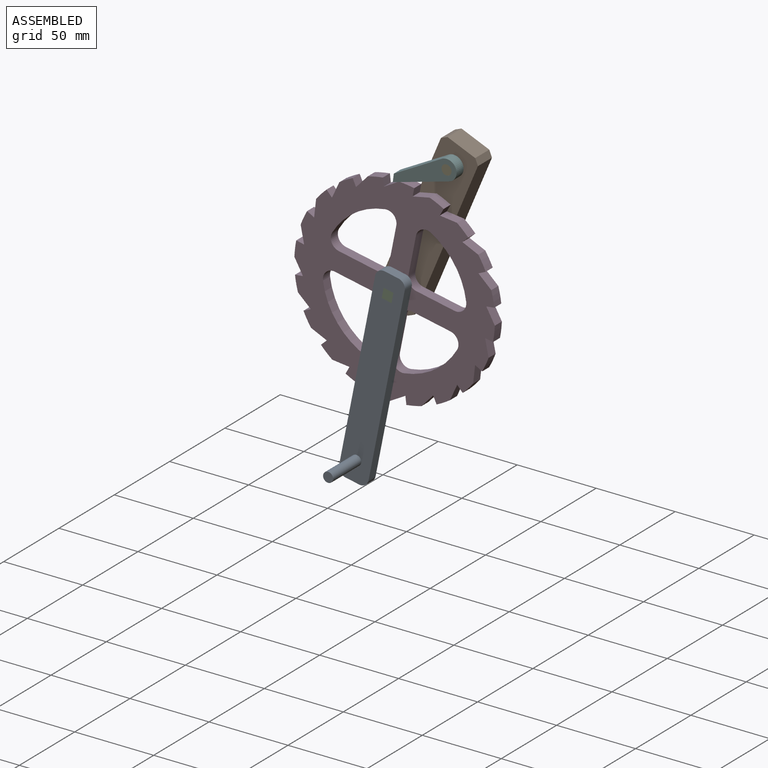
[diagram: assembled view]
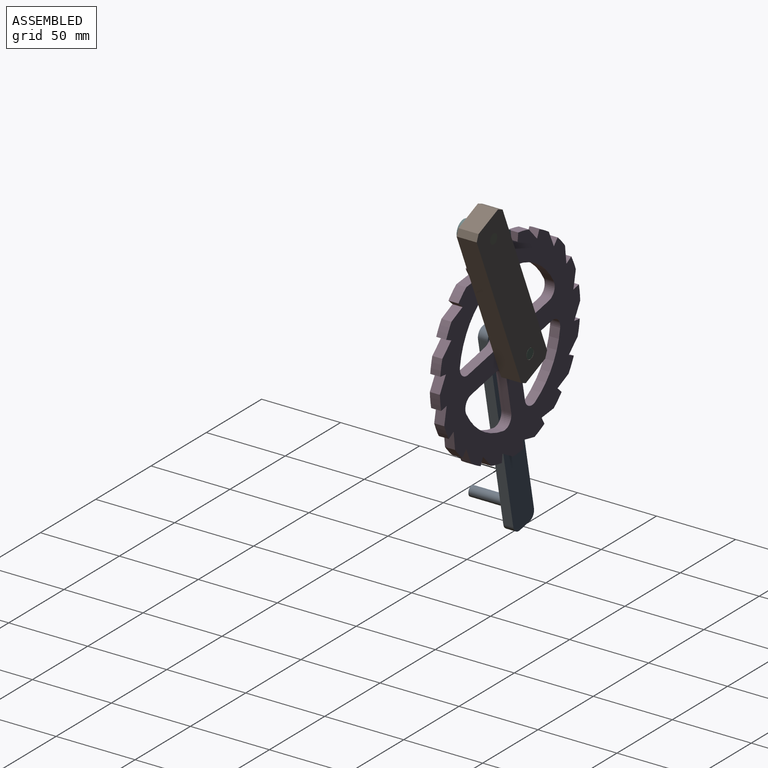
[diagram: assembled view, second angle]
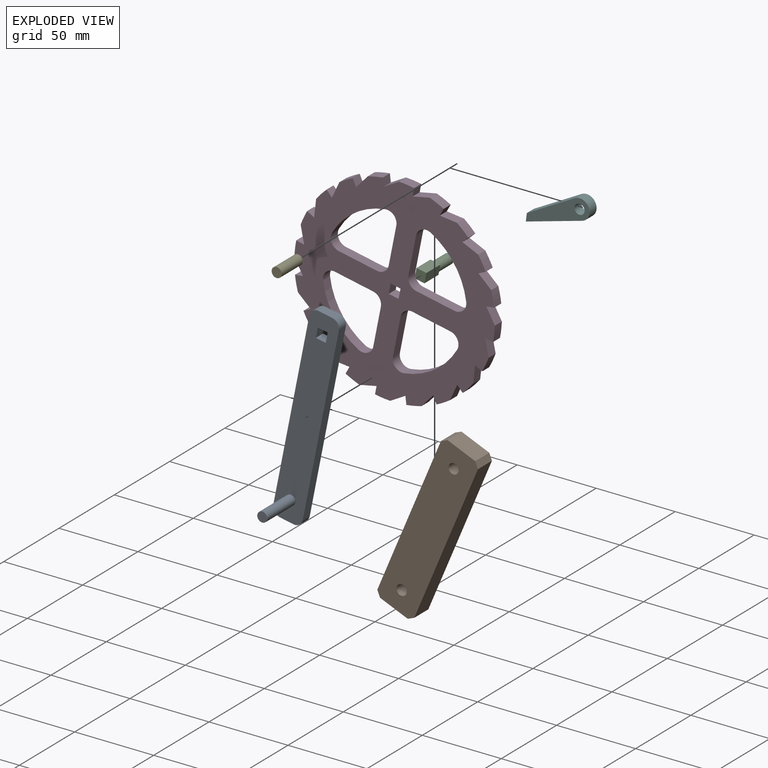
[diagram: exploded view]
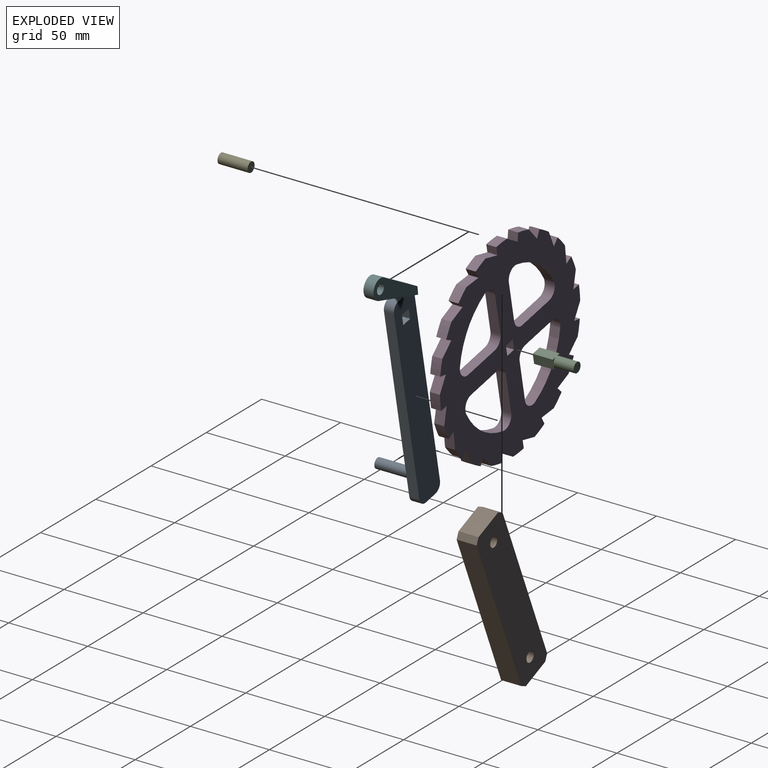
[diagram: exploded view, second angle]
ASSEMBLY  parts=6 mates=5
PART A: 17 faces, bbox 127x31.8x19.1 mm
  f0: plane 127x19.05mm, normal (0,-1,0), area 2325.2mm2, adj f2,f3,f4,f5,f6,f7,f8,f9
  f1: plane 127x19.05mm, normal (0,1,0), area 2356.9mm2, adj f2,f3,f4,f5,f6,f7,f8,f9
  f2: plane 8.89x6.35mm, normal (1,0,0), area 56.5mm2, adj f0,f1,f12,f15
  f3: plane 116.84x6.35mm, normal (0,0,1), area 741.9mm2, adj f0,f1,f12,f13
  f4: plane 8.89x6.35mm, normal (-1,0,0), area 56.5mm2, adj f0,f1,f13,f14
  f5: plane 116.84x6.35mm, normal (0,0,-1), area 741.9mm2, adj f0,f1,f14,f15
  f6: plane 6.35x6.35mm, normal (-1,0,0), area 40.3mm2, adj f0,f1,f7,f9
  f7: plane 6.35x6.35mm, normal (0,0,-1), area 39.3mm2, adj f0,f1,f6,f8,f16
  f8: plane 6.35x6.35mm, normal (1,0,0), area 40.3mm2, adj f0,f1,f7,f9
  f9: plane 6.35x6.35mm, normal (0,0,1), area 40.3mm2, adj f0,f1,f6,f8
  f10: cylinder r=3.17mm len=25.4mm, axis (0,1,0), area 506.7mm2, adj f0,f11
  f11: plane 6.35x6.35mm, normal (0,-1,0), area 31.7mm2, adj f10
  f12: cylinder r=5.08mm len=6.35mm, axis (0,-1,0), area 50.7mm2, adj f0,f1,f2,f3
  f13: cylinder r=5.08mm len=6.35mm, axis (0,1,0), area 50.7mm2, adj f0,f1,f3,f4
  f14: cylinder r=5.08mm len=6.35mm, axis (0,-1,0), area 50.7mm2, adj f0,f1,f4,f5
  f15: cylinder r=5.08mm len=6.35mm, axis (0,1,0), area 50.7mm2, adj f0,f1,f2,f5
  f16: revolved ~1.52x0.94mm, area 1.8mm2, adj f7
PART B: 12 faces, bbox 63.7x12.7x109 mm
  f0: plane 95.75x40.26mm, normal (-0.92,0,0.39), area 1319.1mm2, adj f6,f7,f8,f11
  f1: plane 17.56x12.7mm, normal (-0.39,0,-0.92), area 241.9mm2, adj f6,f7,f10,f11
  f2: plane 95.75x40.26mm, normal (0.92,0,-0.39), area 1319.1mm2, adj f6,f7,f9,f10
  f3: cylinder r=3.3mm len=12.7mm, axis (0,1,0), area 263.5mm2, adj f6,f7
  f4: plane 17.56x12.7mm, normal (0.39,0,0.92), area 241.9mm2, adj f6,f7,f8,f9
  f5: cylinder r=3.17mm len=12.7mm, axis (0,1,0), area 253.4mm2, adj f6,f7
  f6: plane 108.99x63.67mm, normal (0,-1,0), area 2713.5mm2, adj f0,f1,f2,f3,f4,f5,f8,f9
  f7: plane 108.99x63.67mm, normal (0,1,0), area 2713.5mm2, adj f0,f1,f2,f3,f4,f5,f8,f9
  f8: plane 12.7x4.16mm, normal (-0.38,0,0.93), area 57mm2, adj f0,f4,f6,f7
  f9: plane 12.7x4.16mm, normal (0.93,0,0.38), area 57mm2, adj f2,f4,f6,f7
  f10: plane 12.7x4.16mm, normal (0.38,0,-0.93), area 57mm2, adj f1,f2,f6,f7
  f11: plane 12.7x4.16mm, normal (-0.93,0,-0.38), area 57mm2, adj f0,f1,f6,f7
PART C: 11 faces, bbox 6.4x25.4x6.4 mm
  f0: cylinder r=3.17mm len=12.7mm, axis (0,1,0), area 253.4mm2, adj f1,f2,f3,f4,f5
  f1: plane 6.35x6.35mm, normal (0,1,0), area 31.7mm2, adj f0
  f2: plane 3.18x3.18mm, normal (0,1,0), area 2.2mm2, adj f0,f6,f9
  f3: plane 3.18x3.18mm, normal (0,1,0), area 2.2mm2, adj f0,f6,f7
  f4: plane 3.18x3.18mm, normal (0,1,0), area 2.2mm2, adj f0,f7,f8
  f5: plane 3.18x3.18mm, normal (0,1,0), area 2.2mm2, adj f0,f8,f9
  f6: plane 12.7x6.35mm, normal (1,0,0), area 80.6mm2, adj f2,f3,f7,f9,f10
  f7: plane 12.7x6.35mm, normal (0,0,1), area 80.6mm2, adj f3,f4,f6,f8,f10
  f8: plane 12.7x6.35mm, normal (-1,0,0), area 80.6mm2, adj f4,f5,f7,f9,f10
  f9: plane 12.7x6.35mm, normal (0,0,-1), area 80.6mm2, adj f2,f5,f6,f8,f10
  f10: plane 6.35x6.35mm, normal (0,-1,0), area 40.3mm2, adj f6,f7,f8,f9
PART D: 90 faces, bbox 127x6.4x127 mm
  f0: plane 127x127mm, normal (0,-1,0), area 7829.8mm2, adj f2,f3,f4,f5,f6,f7,f8,f9
  f1: plane 127x127mm, normal (0,1,0), area 7829.8mm2, adj f2,f3,f4,f5,f6,f7,f8,f9
  f2: cylinder r=63.5mm len=9mm, axis (0,1,0), area 61.9mm2, adj f0,f1,f33,f64
  f3: cylinder r=63.5mm len=9.71mm, axis (0,1,0), area 61.9mm2, adj f0,f1,f62,f65
  f4: cylinder r=63.5mm len=9.46mm, axis (0,1,0), area 61.9mm2, adj f0,f1,f60,f63
  f5: cylinder r=63.5mm len=8.29mm, axis (0,1,0), area 61.9mm2, adj f0,f1,f58,f61
  f6: cylinder r=63.5mm len=7.41mm, axis (0,1,0), area 61.9mm2, adj f0,f1,f56,f59
  f7: cylinder r=63.5mm len=9mm, axis (0,1,0), area 61.9mm2, adj f0,f1,f54,f57
  f8: cylinder r=63.5mm len=9.71mm, axis (0,1,0), area 61.9mm2, adj f0,f1,f52,f55
  f9: cylinder r=63.5mm len=9.46mm, axis (0,1,0), area 61.9mm2, adj f0,f1,f50,f53
  f10: cylinder r=63.5mm len=8.29mm, axis (0,1,0), area 61.9mm2, adj f0,f1,f48,f51
  f11: cylinder r=63.5mm len=7.41mm, axis (0,1,0), area 61.9mm2, adj f0,f1,f46,f49
  f12: cylinder r=63.5mm len=9mm, axis (0,1,0), area 61.9mm2, adj f0,f1,f44,f47
  f13: cylinder r=63.5mm len=9.71mm, axis (0,1,0), area 61.9mm2, adj f0,f1,f42,f45
  f14: cylinder r=63.5mm len=9.46mm, axis (0,1,0), area 61.9mm2, adj f0,f1,f40,f43
  f15: cylinder r=63.5mm len=8.29mm, axis (0,1,0), area 61.9mm2, adj f0,f1,f38,f41
  f16: cylinder r=63.5mm len=7.41mm, axis (0,1,0), area 61.9mm2, adj f0,f1,f36,f39
  f17: cylinder r=63.5mm len=9mm, axis (0,1,0), area 61.9mm2, adj f0,f1,f34,f37
  f18: cylinder r=63.5mm len=7.41mm, axis (0,1,0), area 61.9mm2, adj f0,f1,f31,f32
  f19: cylinder r=63.5mm len=8.29mm, axis (0,1,0), area 61.9mm2, adj f0,f1,f29,f30
  f20: cylinder r=63.5mm len=9.46mm, axis (0,1,0), area 61.9mm2, adj f0,f1,f26,f28
  f21: plane 6.35x6.35mm, normal (0,0,-1), area 40.3mm2, adj f0,f1,f22,f25
  f22: plane 6.35x6.35mm, normal (-1,0,0), area 40.3mm2, adj f0,f1,f21,f23
  f23: plane 6.35x6.35mm, normal (0,0,1), area 40.3mm2, adj f0,f1,f22,f25
  f24: cylinder r=63.5mm len=9.71mm, axis (0,1,0), area 61.9mm2, adj f0,f1,f27,f35
  f25: plane 6.35x6.35mm, normal (1,0,0), area 40.3mm2, adj f0,f1,f21,f23
  f26: plane 10.16x6.35mm, normal (-0.39,0,0.92), area 70mm2, adj f0,f1,f20,f27
  f27: plane 6.35x5.08mm, normal (1,0,0), area 32.3mm2, adj f0,f1,f24,f26
  f28: plane 6.35x4.83mm, normal (0.95,0,-0.31), area 32.3mm2, adj f0,f1,f20,f29
  f29: plane 10.98x6.35mm, normal (-0.08,0,1), area 70mm2, adj f0,f1,f19,f28
  f30: plane 6.35x4.11mm, normal (0.81,0,-0.59), area 32.3mm2, adj f0,f1,f19,f31
  f31: plane 10.72x6.35mm, normal (0.23,0,0.97), area 70mm2, adj f0,f1,f18,f30
  f32: plane 6.35x4.11mm, normal (0.59,0,-0.81), area 32.3mm2, adj f0,f1,f18,f33
  f33: plane 9.42x6.35mm, normal (0.52,0,0.85), area 70mm2, adj f0,f1,f2,f32
  f34: plane 6.35x4.83mm, normal (0.95,0,0.31), area 32.3mm2, adj f0,f1,f17,f35
  f35: plane 8.35x7.19mm, normal (-0.65,0,0.76), area 70mm2, adj f0,f1,f24,f34
  f36: plane 6.35x4.11mm, normal (0.81,0,0.59), area 32.3mm2, adj f0,f1,f16,f37
  f37: plane 9.42x6.35mm, normal (-0.85,0,0.52), area 70mm2, adj f0,f1,f17,f36
  f38: plane 6.35x4.11mm, normal (0.59,0,0.81), area 32.3mm2, adj f0,f1,f15,f39
  f39: plane 10.72x6.35mm, normal (-0.97,0,0.23), area 70mm2, adj f0,f1,f16,f38
  f40: plane 6.35x4.83mm, normal (0.31,0,0.95), area 32.3mm2, adj f0,f1,f14,f41
  f41: plane 10.98x6.35mm, normal (-1,0,-0.08), area 70mm2, adj f0,f1,f15,f40
  f42: plane 6.35x5.08mm, normal (0,0,1), area 32.3mm2, adj f0,f1,f13,f43
  f43: plane 10.16x6.35mm, normal (-0.92,0,-0.39), area 70mm2, adj f0,f1,f14,f42
  f44: plane 6.35x4.83mm, normal (-0.31,0,0.95), area 32.3mm2, adj f0,f1,f12,f45
  f45: plane 8.35x7.19mm, normal (-0.76,0,-0.65), area 70mm2, adj f0,f1,f13,f44
  f46: plane 6.35x4.11mm, normal (-0.59,0,0.81), area 32.3mm2, adj f0,f1,f11,f47
  f47: plane 9.42x6.35mm, normal (-0.52,0,-0.85), area 70mm2, adj f0,f1,f12,f46
  f48: plane 6.35x4.11mm, normal (-0.81,0,0.59), area 32.3mm2, adj f0,f1,f10,f49
  f49: plane 10.72x6.35mm, normal (-0.23,0,-0.97), area 70mm2, adj f0,f1,f11,f48
  f50: plane 6.35x4.83mm, normal (-0.95,0,0.31), area 32.3mm2, adj f0,f1,f9,f51
  f51: plane 10.98x6.35mm, normal (0.08,0,-1), area 70mm2, adj f0,f1,f10,f50
  f52: plane 6.35x5.08mm, normal (-1,0,0), area 32.3mm2, adj f0,f1,f8,f53
  f53: plane 10.16x6.35mm, normal (0.39,0,-0.92), area 70mm2, adj f0,f1,f9,f52
  f54: plane 6.35x4.83mm, normal (-0.95,0,-0.31), area 32.3mm2, adj f0,f1,f7,f55
  f55: plane 8.35x7.19mm, normal (0.65,0,-0.76), area 70mm2, adj f0,f1,f8,f54
  f56: plane 6.35x4.11mm, normal (-0.81,0,-0.59), area 32.3mm2, adj f0,f1,f6,f57
  f57: plane 9.42x6.35mm, normal (0.85,0,-0.52), area 70mm2, adj f0,f1,f7,f56
  f58: plane 6.35x4.11mm, normal (-0.59,0,-0.81), area 32.3mm2, adj f0,f1,f5,f59
  f59: plane 10.72x6.35mm, normal (0.97,0,-0.23), area 70mm2, adj f0,f1,f6,f58
  f60: plane 6.35x4.83mm, normal (-0.31,0,-0.95), area 32.3mm2, adj f0,f1,f4,f61
  f61: plane 10.98x6.35mm, normal (1,0,0.08), area 70mm2, adj f0,f1,f5,f60
  f62: plane 6.35x5.08mm, normal (0,0,-1), area 32.3mm2, adj f0,f1,f3,f63
  f63: plane 10.16x6.35mm, normal (0.92,0,0.39), area 70mm2, adj f0,f1,f4,f62
  f64: plane 6.35x4.83mm, normal (0.31,0,-0.95), area 32.3mm2, adj f0,f1,f2,f65
  f65: plane 8.35x7.19mm, normal (0.76,0,0.65), area 70mm2, adj f0,f1,f3,f64
  f66: plane 24.57x6.35mm, normal (0,0,-1), area 156mm2, adj f0,f1,f87,f89
  f67: cylinder r=45.72mm len=28.53mm, axis (0,-1,0), area 265.3mm2, adj f0,f1,f88,f89
  f68: plane 24.57x6.35mm, normal (-1,0,0), area 156mm2, adj f0,f1,f87,f88
  f69: plane 24.57x6.35mm, normal (0,0,1), area 156mm2, adj f0,f1,f84,f86
  f70: plane 24.57x6.35mm, normal (-1,0,0), area 156mm2, adj f0,f1,f84,f85
  f71: cylinder r=45.72mm len=28.53mm, axis (0,-1,0), area 265.3mm2, adj f0,f1,f85,f86
  f72: plane 24.57x6.35mm, normal (1,0,0), area 156mm2, adj f0,f1,f81,f83
  f73: plane 24.57x6.35mm, normal (0,0,1), area 156mm2, adj f0,f1,f82,f83
  f74: cylinder r=45.72mm len=28.53mm, axis (0,-1,0), area 265.3mm2, adj f0,f1,f81,f82
  f75: plane 24.57x6.35mm, normal (0,0,-1), area 156mm2, adj f0,f1,f78,f80
  f76: plane 24.57x6.35mm, normal (1,0,0), area 156mm2, adj f0,f1,f79,f80
  f77: cylinder r=45.72mm len=28.53mm, axis (0,-1,0), area 265.3mm2, adj f0,f1,f78,f79
  f78: cylinder r=6.35mm len=8.4mm, axis (0,-1,0), area 76.6mm2, adj f0,f1,f75,f77
  f79: cylinder r=6.35mm len=8.4mm, axis (0,-1,0), area 76.6mm2, adj f0,f1,f76,f77
  f80: cylinder r=6.35mm len=6.35mm, axis (0,-1,0), area 63.3mm2, adj f0,f1,f75,f76
  f81: cylinder r=6.35mm len=8.4mm, axis (0,-1,0), area 76.6mm2, adj f0,f1,f72,f74
  f82: cylinder r=6.35mm len=8.4mm, axis (0,-1,0), area 76.6mm2, adj f0,f1,f73,f74
  f83: cylinder r=6.35mm len=6.35mm, axis (0,-1,0), area 63.3mm2, adj f0,f1,f72,f73
  f84: cylinder r=6.35mm len=6.35mm, axis (0,-1,0), area 63.3mm2, adj f0,f1,f69,f70
  f85: cylinder r=6.35mm len=8.4mm, axis (0,-1,0), area 76.6mm2, adj f0,f1,f70,f71
  f86: cylinder r=6.35mm len=8.4mm, axis (0,-1,0), area 76.6mm2, adj f0,f1,f69,f71
  f87: cylinder r=6.35mm len=6.35mm, axis (0,-1,0), area 63.3mm2, adj f0,f1,f66,f68
  f88: cylinder r=6.35mm len=8.4mm, axis (0,-1,0), area 76.6mm2, adj f0,f1,f67,f68
  f89: cylinder r=6.35mm len=8.4mm, axis (0,-1,0), area 76.6mm2, adj f0,f1,f66,f67
PART E: 3 faces, bbox 6.4x19.1x6.4 mm
  f0: cylinder r=3.17mm len=19.05mm, axis (0,1,0), area 380mm2, adj f1,f2
  f1: plane 6.35x6.35mm, normal (0,-1,0), area 31.7mm2, adj f0
  f2: plane 6.35x6.35mm, normal (0,1,0), area 31.7mm2, adj f0
PART F: 7 faces, bbox 38.1x6.4x26.6 mm
  f0: plane 6.35x5.08mm, normal (-1,0,0), area 32.3mm2, adj f1,f3,f5,f6
  f1: plane 34.21x14.35mm, normal (0.39,0,-0.92), area 235.5mm2, adj f0,f2,f5,f6
  f2: cylinder r=6.35mm len=12.21mm, axis (0,1,0), area 135.9mm2, adj f1,f3,f5,f6
  f3: plane 28.03x20.27mm, normal (-0.59,0,0.81), area 219.6mm2, adj f0,f2,f5,f6
  f4: cylinder r=3.17mm len=6.35mm, axis (0,1,0), area 126.7mm2, adj f5,f6
  f5: plane 38.1x26.55mm, normal (0,-1,0), area 344.5mm2, adj f0,f1,f2,f3,f4
  f6: plane 38.1x26.55mm, normal (0,1,0), area 344.5mm2, adj f0,f1,f2,f3,f4
PLACE A rot(axis=(0,1,0),101.3deg) t=(-247.33,-0.19,-105.37)mm
PLACE B t=(-237.39,18.86,-55.55)mm fixed
PLACE C rot(axis=(0,-1,0),78.7deg) t=(-237.39,18.86,-55.55)mm
PLACE D rot(axis=(0,-1,0),78.7deg) t=(-237.39,6.16,-55.55)mm
PLACE E t=(-204.52,18.86,22.64)mm
PLACE F rot(axis=(0,1,0),7.2deg) t=(-238.54,6.16,6.55)mm
MATE fastened D.f22 <-> C.f6  axis (-0.2,0,-0.98) through (-236.77,6.16,-52.44)mm
MATE revolute C.f0 <-> B.f3  axis (0,1,0) through (-237.39,18.86,-55.55)mm
MATE fastened A.f0 <-> C.f0  axis (0,-1,0) through (-237.39,-6.54,-55.55)mm
MATE revolute B.f5 <-> E.f0  axis (0,1,0) through (-204.52,18.86,22.64)mm
MATE revolute F.f2 <-> E.f0  axis (0,-1,0) through (-204.52,-0.19,22.64)mm
